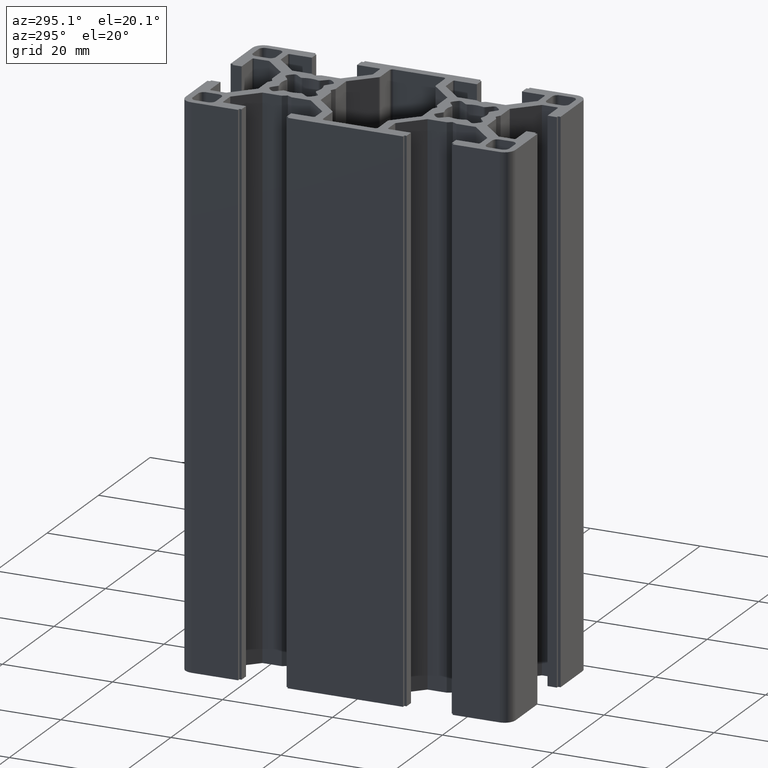
[diagram: clean part render]
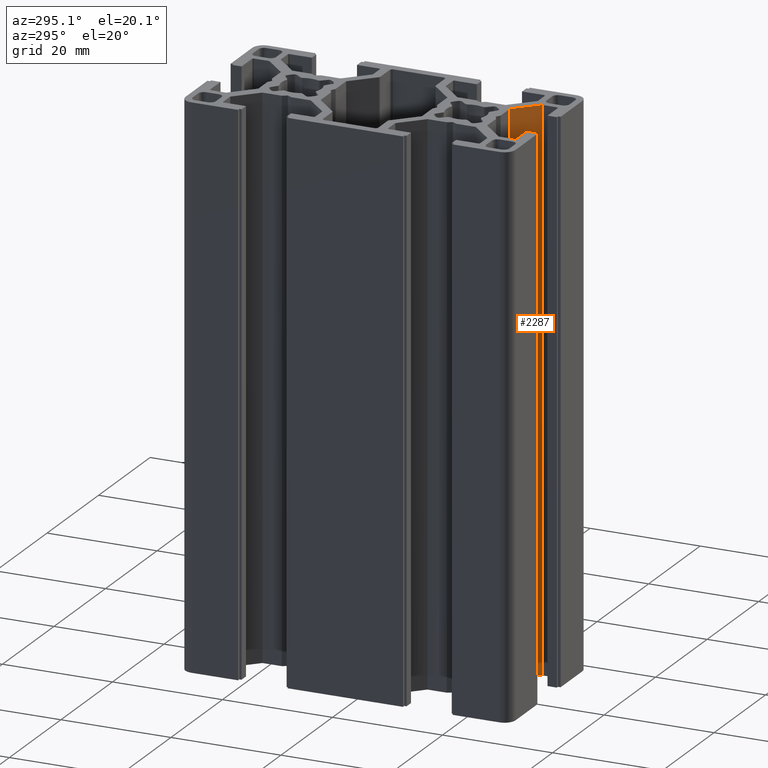
[diagram: same view with one face highlighted and labeled with its STEP entity id]
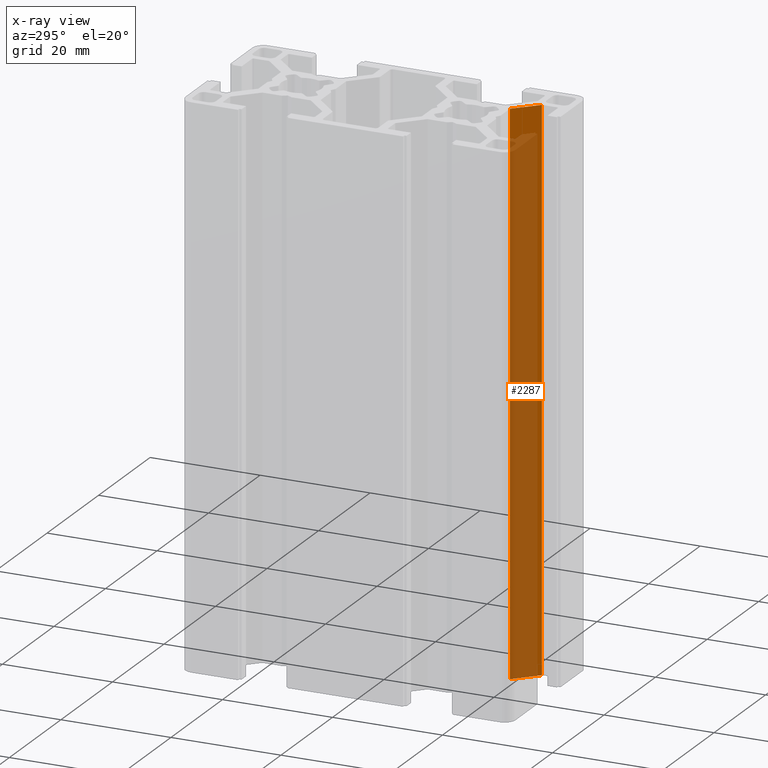
[diagram: x-ray of the same camera — body ghosted, the highlighted face saturated]
A machine part, auxiliary view. The second image highlights one B-rep face of the part: STEP entity #2287.
The next image is the same camera in x-ray: the body ghosted, the highlighted face saturated — about 82% of this face is hidden behind the body in this view.
In plain terms, the highlighted planar face has unit normal (0.7071, 0.7071, -0).
Its self-contained STEP definition (entity closure, byte-faithful):
#738 = EDGE_CURVE ( 'NONE', #747, #739, #4326, .T. ) ;
#739 = VERTEX_POINT ( 'NONE', #4325 ) ;
#747 = VERTEX_POINT ( 'NONE', #4314 ) ;
#1454 = VERTEX_POINT ( 'NONE', #5566 ) ;
#1461 = VERTEX_POINT ( 'NONE', #5608 ) ;
#1522 = EDGE_CURVE ( 'NONE', #1461, #1454, #5718, .T. ) ;
#2235 = EDGE_LOOP ( 'NONE', ( #2289, #2286, #2292, #2291 ) ) ;
#2238 = EDGE_CURVE ( 'NONE', #747, #1461, #6900, .T. ) ;
#2285 = EDGE_CURVE ( 'NONE', #739, #1454, #7002, .T. ) ;
#2286 = ORIENTED_EDGE ( 'NONE', *, *, #2285, .F. ) ;
#2287 = ADVANCED_FACE ( 'NONE', ( #6967 ), #6993, .F. ) ;
#2289 = ORIENTED_EDGE ( 'NONE', *, *, #1522, .T. ) ;
#2291 = ORIENTED_EDGE ( 'NONE', *, *, #2238, .T. ) ;
#2292 = ORIENTED_EDGE ( 'NONE', *, *, #738, .F. ) ;
#4314 = CARTESIAN_POINT ( 'NONE',  ( 4.385786437626912000, -20.80000000000000400, 100.0000000000000000 ) ) ;
#4322 = DIRECTION ( 'NONE',  ( 0.7071067811865475700, -0.7071067811865474600, -0.0000000000000000000 ) ) ;
#4323 = VECTOR ( 'NONE', #4322, 1000.000000000000000 ) ;
#4324 = CARTESIAN_POINT ( 'NONE',  ( 8.375000000000000000, -24.78921356237308900, 100.0000000000000000 ) ) ;
#4325 = CARTESIAN_POINT ( 'NONE',  ( 8.375000000000000000, -24.78921356237308900, 100.0000000000000000 ) ) ;
#4326 = LINE ( 'NONE', #4324, #4323 ) ;
#5566 = CARTESIAN_POINT ( 'NONE',  ( 8.375000000000000000, -24.78921356237308900, 0.0000000000000000000 ) ) ;
#5608 = CARTESIAN_POINT ( 'NONE',  ( 4.385786437626912000, -20.80000000000000400, 0.0000000000000000000 ) ) ;
#5711 = DIRECTION ( 'NONE',  ( 0.7071067811865475700, -0.7071067811865474600, -0.0000000000000000000 ) ) ;
#5712 = VECTOR ( 'NONE', #5711, 1000.000000000000000 ) ;
#5713 = CARTESIAN_POINT ( 'NONE',  ( 8.375000000000000000, -24.78921356237308900, 0.0000000000000000000 ) ) ;
#5718 = LINE ( 'NONE', #5713, #5712 ) ;
#6893 = DIRECTION ( 'NONE',  ( -0.0000000000000000000, -0.0000000000000000000, -1.000000000000000000 ) ) ;
#6894 = VECTOR ( 'NONE', #6893, 1000.000000000000000 ) ;
#6895 = CARTESIAN_POINT ( 'NONE',  ( 4.385786437626912000, -20.80000000000000400, 100.0000000000000000 ) ) ;
#6900 = LINE ( 'NONE', #6895, #6894 ) ;
#6956 = CARTESIAN_POINT ( 'NONE',  ( 8.375000000000000000, -24.78921356237308900, 100.0000000000000000 ) ) ;
#6967 = FACE_OUTER_BOUND ( 'NONE', #2235, .T. ) ;
#6970 = AXIS2_PLACEMENT_3D ( 'NONE', #6956, #6990, #6989 ) ;
#6989 = DIRECTION ( 'NONE',  ( -0.7071067811865476800, 0.7071067811865474600, 0.0000000000000000000 ) ) ;
#6990 = DIRECTION ( 'NONE',  ( 0.7071067811865474600, 0.7071067811865476800, -0.0000000000000000000 ) ) ;
#6993 = PLANE ( 'NONE',  #6970 ) ;
#6994 = DIRECTION ( 'NONE',  ( -0.0000000000000000000, -0.0000000000000000000, -1.000000000000000000 ) ) ;
#6995 = VECTOR ( 'NONE', #6994, 1000.000000000000000 ) ;
#6996 = CARTESIAN_POINT ( 'NONE',  ( 8.375000000000000000, -24.78921356237308900, 100.0000000000000000 ) ) ;
#7002 = LINE ( 'NONE', #6996, #6995 ) ;